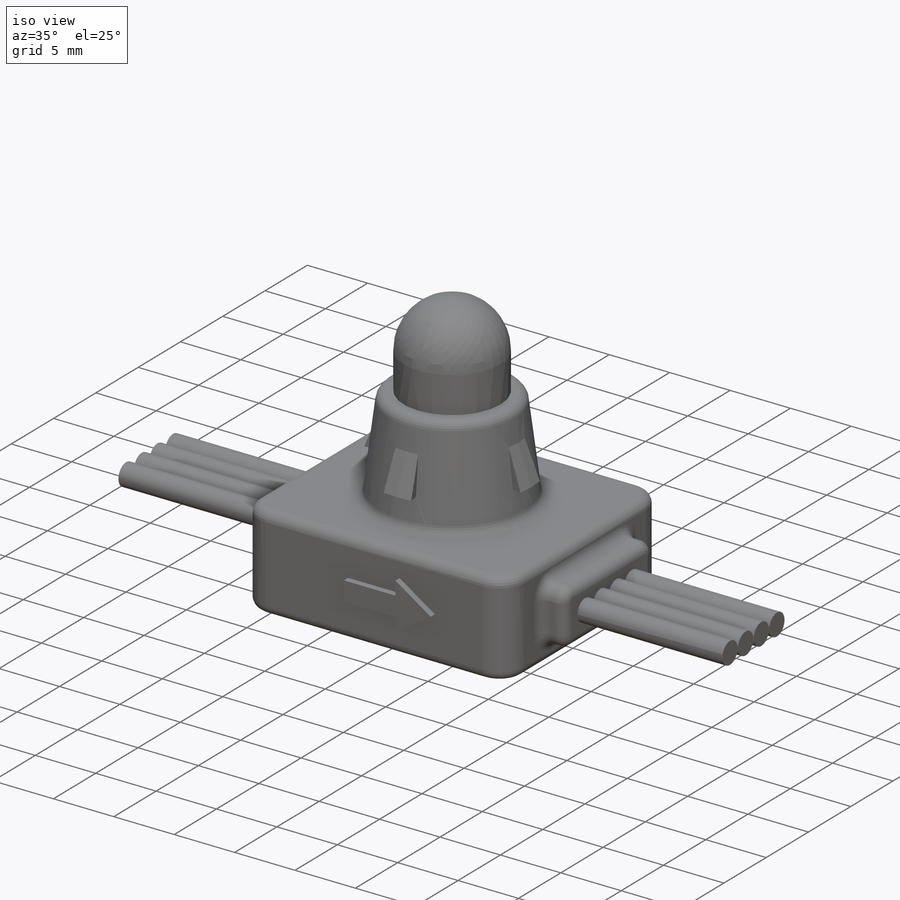
[diagram: iso view]
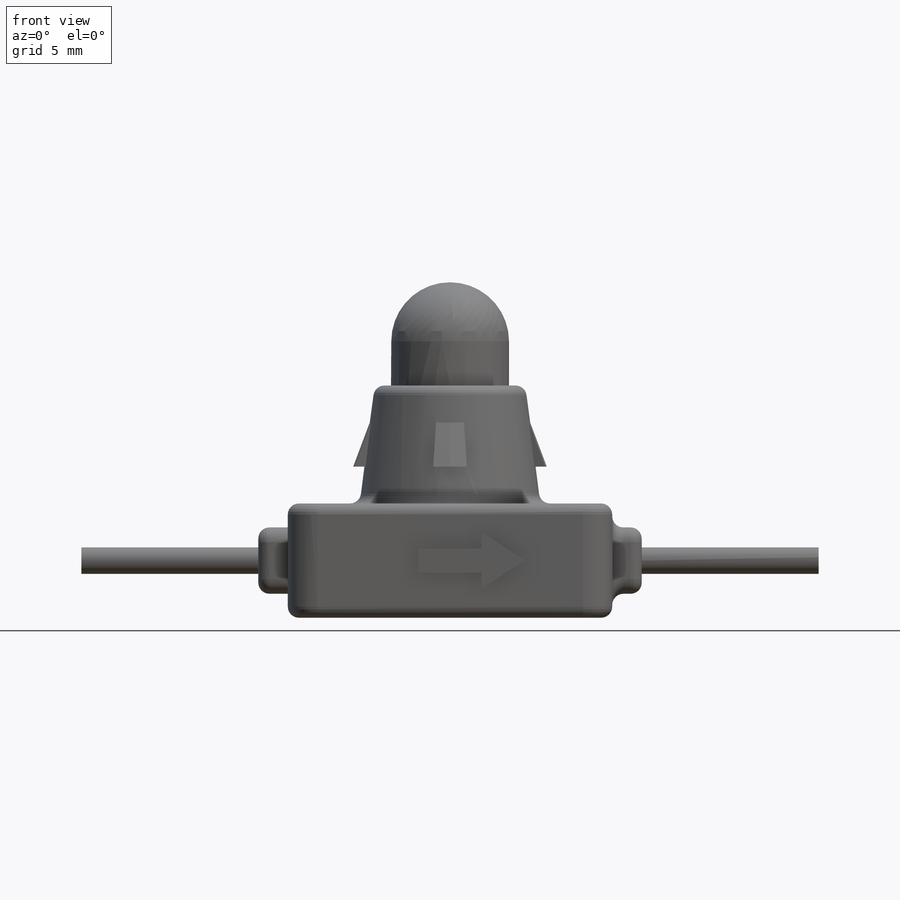
[diagram: front view]
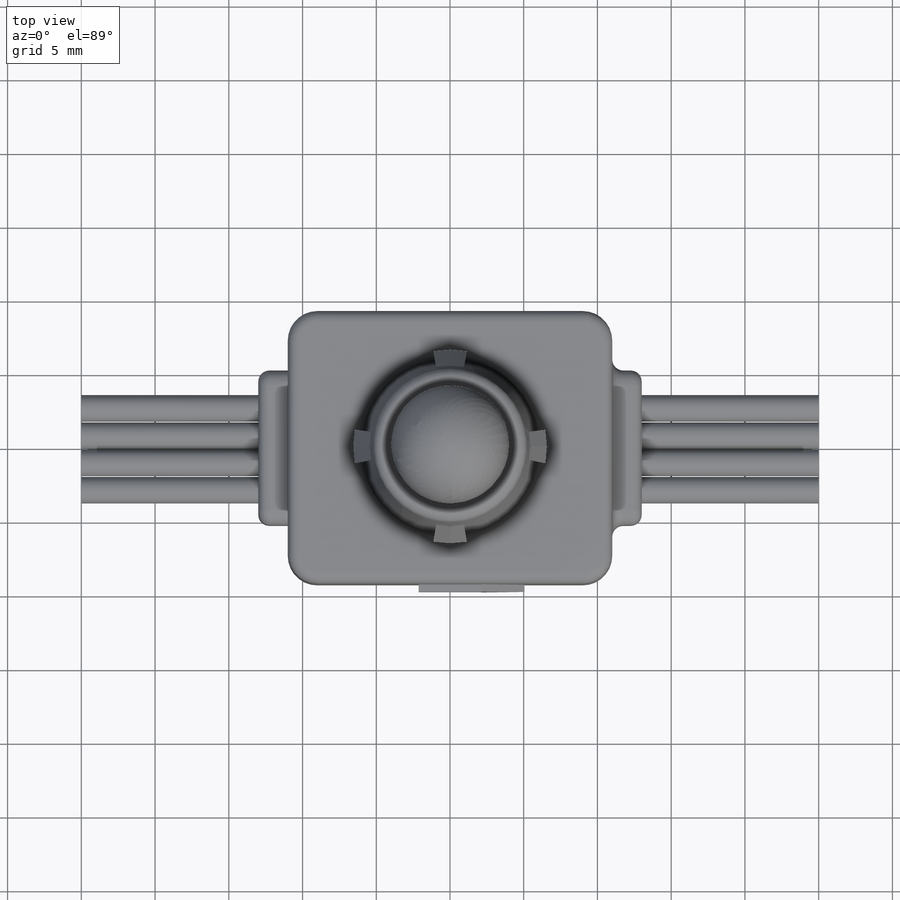
[diagram: top view]
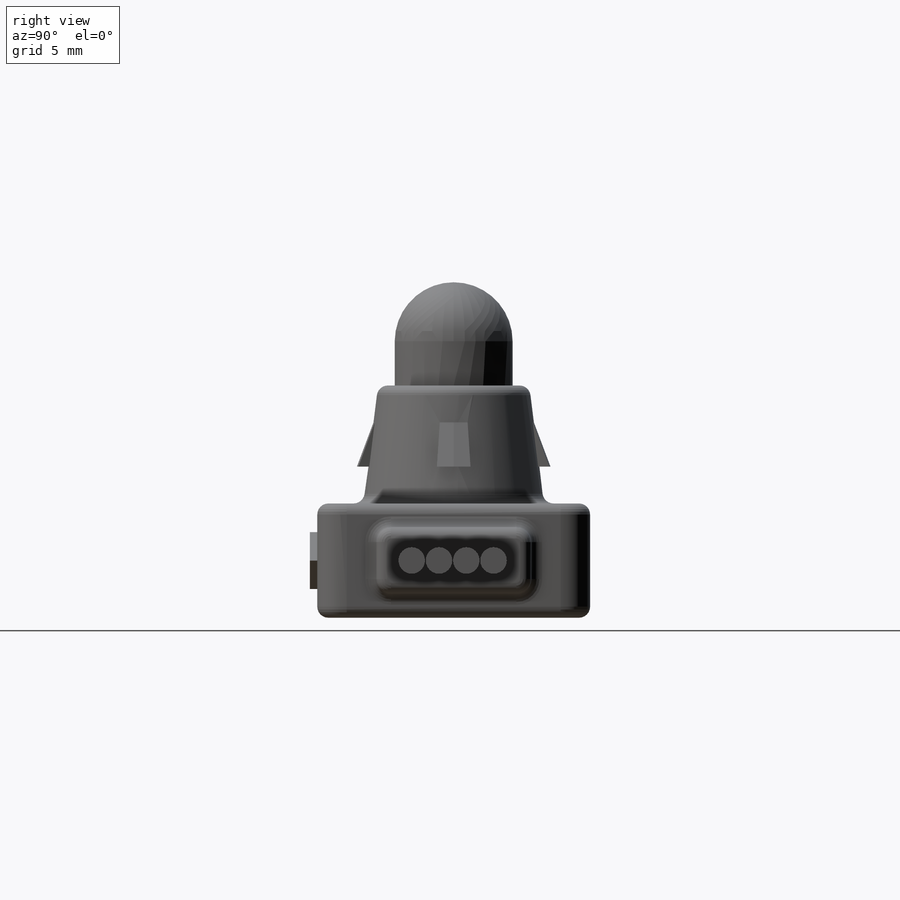
[diagram: right view]
SOLIDWORKS PART (.sldprt)
format: sldprt  version: not decoded by parser v0  size: 497,152 bytes
history: native  units: mm
features: sketch x9, extrude x4, revolve x3, fillet x2, material x1, pattern_circular x1, plane x1, sweep x1, pattern_linear x1, mirror x1 (+11 scaffold rows collapsed)
feature tree (35):
  scaffold x11  (default folders/planes/origin — collapsed)
  material  "Epoxy, Unfilled"
  sketch  "Sketch1"  dims[D1=8.0mm]
  extrude  "Boss-Extrude1"  Depth=3mm
  sketch  "Sketch2"  dims[D1=8.0mm]
  revolve  "Revolve1"  Angle=360deg
  sketch  "Sketch3"  dims[D1=5.125mm D2=6.125mm D3=8.0mm]
  revolve  "Revolve2"  Angle=360deg
  sketch  "Sketch4"  dims[D1=2.5mm D2=3.0mm D3=0.75mm]
  revolve  "Revolve3"  Angle=10deg
  pattern_circular  "CirPattern1"  Count=4 Angle=360deg
  sketch  "Sketch5"  dims[D3=2.0mm D1=18.5mm D2=22.0mm]
  extrude  "Boss-Extrude2"  Depth=7.75mm
  sketch  "Sketch6"  dims[D3=1.0mm D1=10.5mm D2=4.5mm D4=2.0mm]
  extrude  "Boss-Extrude3"  Depth=2mm
  fillet  "Fillet1"  Radius=0.75mm
  sketch  "Sketch7"  dims[D1=1.8mm D2=2.7mm]
  plane  "Plane1"
  sketch  "Sketch8"  dims[D1=12.0mm]
  sweep  "Sweep1"
  pattern_linear  "LPattern1"  Count1=4 Count2=1 Spacing1=1.85mm Spacing2=10mm
  mirror  "Mirror1"
  sketch  "Sketch9"  dims[D1=~6.285933mm]
  extrude  "Boss-Extrude4"  Depth=0.5mm
  fillet  "Fillet2"  Radius=0.75mm
decode coverage: 20 of 22 modeling features carry decoded parameters
note: ~ marks probable driven/reference dimensions
note: suppression state not decoded; provenance and decode notes live in map.json
